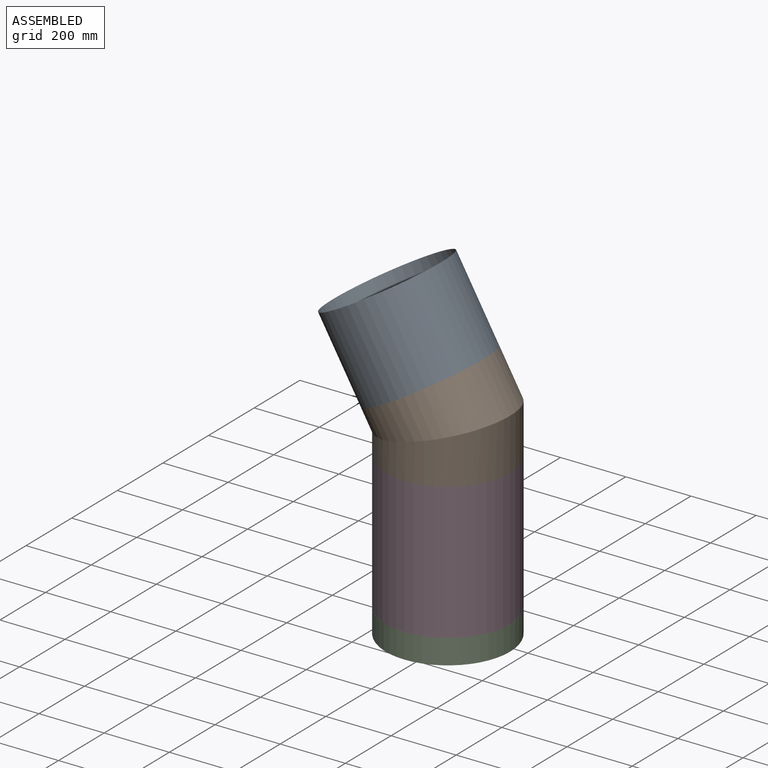
[diagram: assembled view]
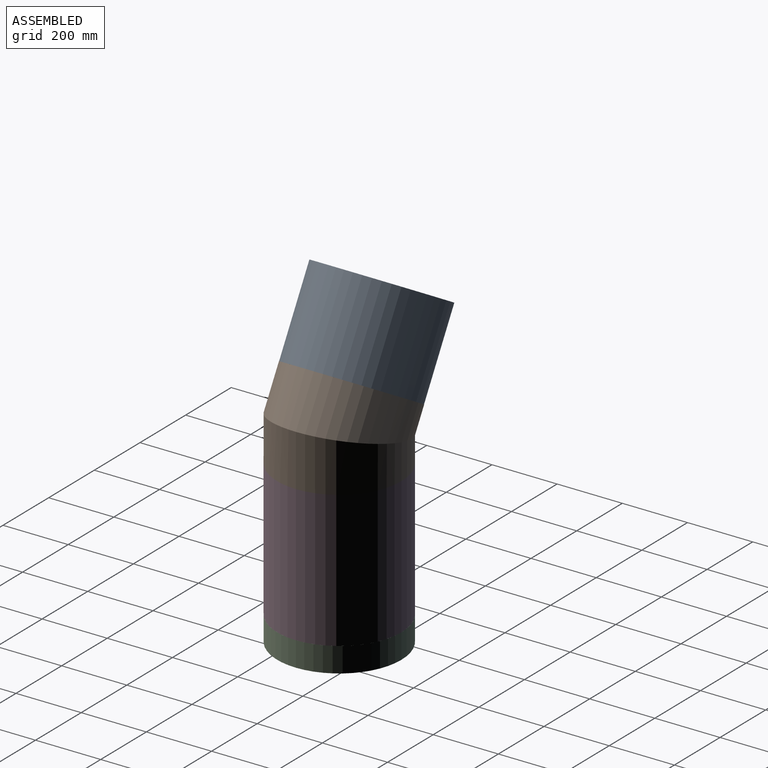
[diagram: assembled view, second angle]
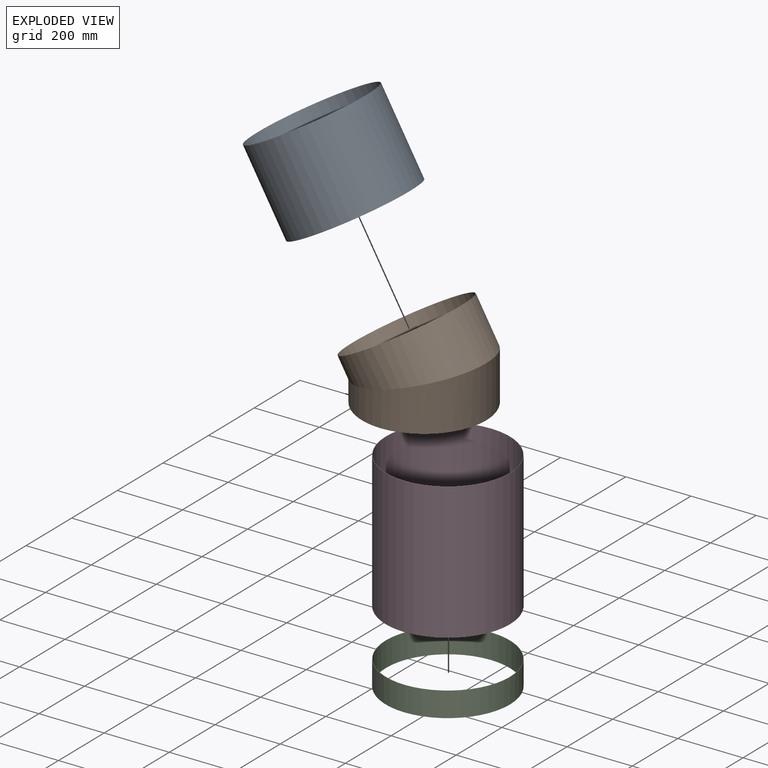
[diagram: exploded view]
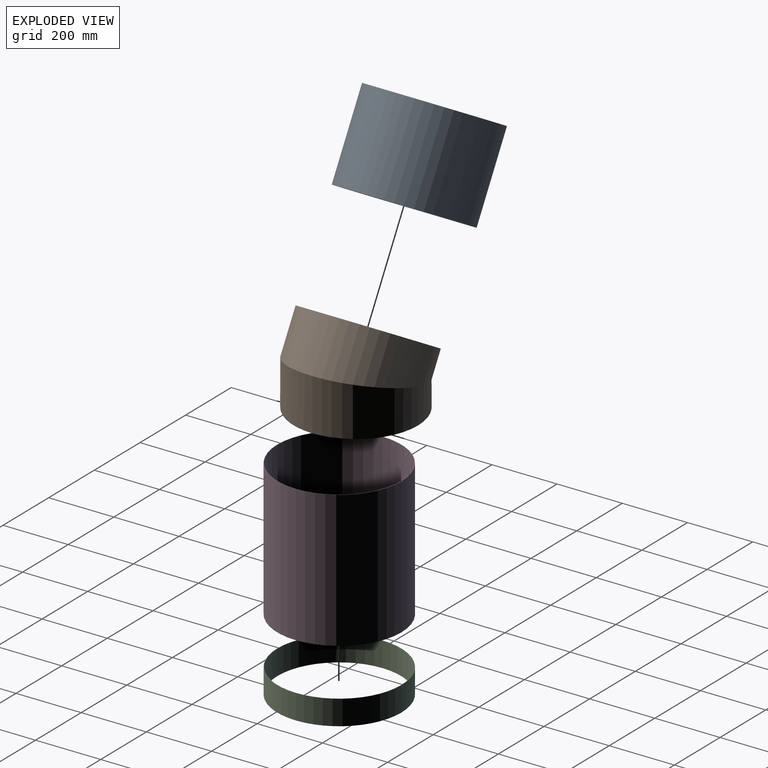
[diagram: exploded view, second angle]
ASSEMBLY  parts=4 mates=3
PART A: 4 faces, bbox 381x381x266.7 mm
  f0: cylinder r=190.5mm len=381mm, axis (0,0,-1), area 319225.7mm2, adj f1,f2
  f1: plane 381x381mm, normal (0,0,1), area 1091.9mm2, adj f0,f3
  f2: plane 381x381mm, normal (0,0,-1), area 1091.9mm2, adj f0,f3
  f3: cylinder r=189.59mm len=379.17mm, axis (0,0,-1), area 317693.4mm2, adj f1,f2
PART B: 6 faces, bbox 409.5x381x327.4 mm
  f0: plane 381x330.41mm, normal (0.5,0,-0.87), area 1091.9mm2, adj f2,f4
  f1: plane 381x381mm, normal (0,0,1), area 1091.9mm2, adj f3,f5
  f2: cylinder r=190.5mm len=409.47mm, axis (0.5,0,-0.87), area 129211.3mm2, adj f0,f3
  f3: cylinder r=190.5mm len=381mm, axis (0,0,-1), area 129211.3mm2, adj f1,f2
  f4: cylinder r=189.59mm len=407.83mm, axis (0.5,0,-0.87), area 128589.4mm2, adj f0,f5
  f5: cylinder r=189.59mm len=379.17mm, axis (0,0,-1), area 128589.4mm2, adj f1,f4
PART C: 4 faces, bbox 381x381x76.2 mm
  f0: cylinder r=190.5mm len=381mm, axis (0,0,-1), area 91207.3mm2, adj f1,f2
  f1: plane 381x381mm, normal (0,0,1), area 1091.9mm2, adj f0,f3
  f2: plane 381x381mm, normal (0,0,-1), area 1091.9mm2, adj f0,f3
  f3: cylinder r=189.59mm len=379.17mm, axis (0,0,-1), area 90769.6mm2, adj f1,f2
PART D: 4 faces, bbox 381x381x419.1 mm
  f0: cylinder r=190.5mm len=419.1mm, axis (0,0,-1), area 501640.4mm2, adj f1,f2
  f1: plane 381x381mm, normal (0,0,1), area 1091.9mm2, adj f0,f3
  f2: plane 381x381mm, normal (0,0,-1), area 1091.9mm2, adj f0,f3
  f3: cylinder r=189.59mm len=419.1mm, axis (0,0,-1), area 499232.5mm2, adj f1,f2
PLACE A rot(axis=(0,-1,0),29.9deg) t=(116.78,-108.63,-863.82)mm
PLACE B rot(axis=(-0.26,0,0.97),180deg) t=(116.78,-108.63,-863.82)mm
PLACE C t=(170.53,-108.63,-1560.68)mm
PLACE D t=(170.53,-108.63,-1484.48)mm
MATE fastened D.f0 <-> C.f0  axis (0,0,-1) through (170.53,-108.63,-1484.48)mm
MATE fastened A.f0 <-> B.f3  axis (0.5,0,-0.87) through (116.78,-108.63,-863.82)mm
MATE fastened B.f2 <-> D.f0  axis (0,0,-1) through (170.53,-108.63,-1065.38)mm
